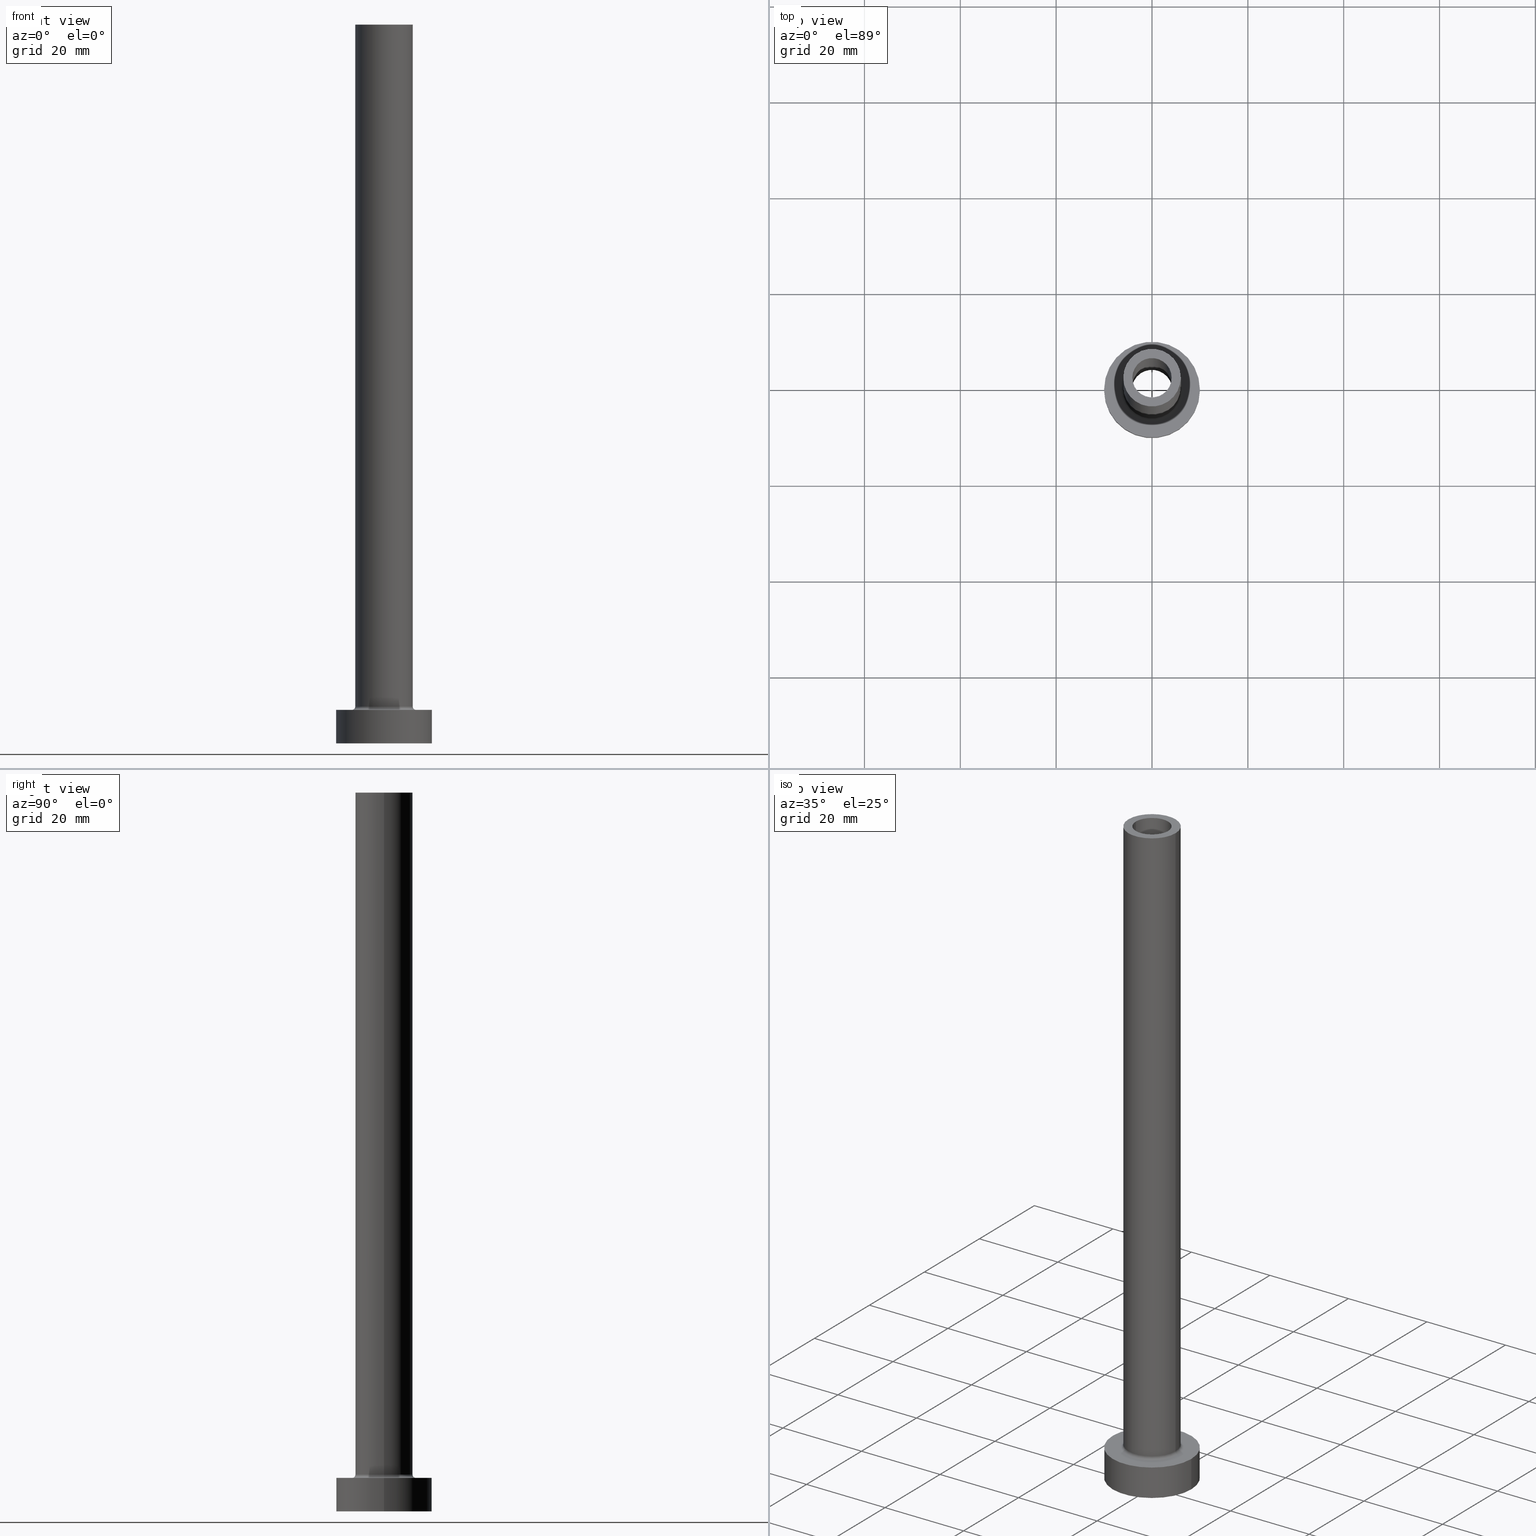
[diagram: canonical four-view strip — front | top / right | iso, engineering-drawing reading convention]
A machine part, canonical four-view strip (front | top / right | iso — engineering-drawing reading convention). The complete STEP part file that produces these views, byte-faithful:
ISO-10303-21;
HEADER;
FILE_DESCRIPTION (( 'STEP AP203' ),
    '1' );
FILE_NAME ('b5dd.STEP',
    '2023-02-13T07:46:06',
    ( '' ),
    ( '' ),
    'SwSTEP 2.0',
    'SolidWorks 2019',
    '' );
FILE_SCHEMA (( 'CONFIG_CONTROL_DESIGN' ));
ENDSEC;

DATA;
#1 = PRODUCT_RELATED_PRODUCT_CATEGORY ( 'detail', '', ( #72 ) ) ;
#2 = APPROVAL_PERSON_ORGANIZATION ( #327, #310, #439 ) ;
#3 = ORIENTED_EDGE ( 'NONE', *, *, #413, .F. ) ;
#4 = CC_DESIGN_APPROVAL ( #224, ( #297 ) ) ;
#5 = EDGE_LOOP ( 'NONE', ( #402, #255, #221, #79 ) ) ;
#6 = ORIENTED_EDGE ( 'NONE', *, *, #188, .F. ) ;
#7 = APPROVAL_ROLE ( '' ) ;
#8 = PRODUCT_DEFINITION_SHAPE ( 'NONE', 'NONE',  #331 ) ;
#9 = ORIENTED_EDGE ( 'NONE', *, *, #283, .F. ) ;
#10 = AXIS2_PLACEMENT_3D ( 'NONE', #308, #319, #200 ) ;
#11 = CALENDAR_DATE ( 2023, 13, 2 ) ;
#12 = DIRECTION ( 'NONE',  ( 0.000000000000000000, 0.000000000000000000, 1.000000000000000000 ) ) ;
#13 = EDGE_CURVE ( 'NONE', #259, #292, #190, .T. ) ;
#14 = ADVANCED_BREP_SHAPE_REPRESENTATION ( 'b5dd', ( #380, #57 ), #50 ) ;
#15 = ORIENTED_EDGE ( 'NONE', *, *, #315, .T. ) ;
#16 = MECHANICAL_CONTEXT ( 'NONE', #215, 'mechanical' ) ;
#17 = EDGE_CURVE ( 'NONE', #352, #278, #449, .T. ) ;
#18 = AXIS2_PLACEMENT_3D ( 'NONE', #406, #263, #370 ) ;
#19 = CARTESIAN_POINT ( 'NONE',  ( -4.099999999999999645, 0.000000000000000000, 150.0000000000000000 ) ) ;
#20 = PLANE ( 'NONE',  #438 ) ;
#21 = PERSON_AND_ORGANIZATION ( #91, #286 ) ;
#22 = CIRCLE ( 'NONE', #141, 6.000000000000000888 ) ;
#23 = CARTESIAN_POINT ( 'NONE',  ( 6.000000000000000888, 7.347880794884120722E-16, 150.0000000000000000 ) ) ;
#24 = ORIENTED_EDGE ( 'NONE', *, *, #413, .T. ) ;
#25 = VECTOR ( 'NONE', #160, 1000.000000000000000 ) ;
#26 = CARTESIAN_POINT ( 'NONE',  ( 0.000000000000000000, 0.000000000000000000, 0.000000000000000000 ) ) ;
#27 = ORIENTED_EDGE ( 'NONE', *, *, #337, .F. ) ;
#28 = DIRECTION ( 'NONE',  ( -0.000000000000000000, -0.000000000000000000, -1.000000000000000000 ) ) ;
#29 = ORIENTED_EDGE ( 'NONE', *, *, #447, .F. ) ;
#30 = CARTESIAN_POINT ( 'NONE',  ( 4.250000000000000000, 5.204748896376250699E-16, 0.000000000000000000 ) ) ;
#31 = AXIS2_PLACEMENT_3D ( 'NONE', #62, #109, #450 ) ;
#32 = DIRECTION ( 'NONE',  ( 1.000000000000000000, 0.000000000000000000, 0.000000000000000000 ) ) ;
#33 = CARTESIAN_POINT ( 'NONE',  ( 0.000000000000000000, 0.000000000000000000, 105.0000000000000000 ) ) ;
#34 = ADVANCED_FACE ( 'NONE', ( #63 ), #445, .F. ) ;
#35 = CARTESIAN_POINT ( 'NONE',  ( 0.000000000000000000, 0.000000000000000000, 150.0000000000000000 ) ) ;
#36 = VERTEX_POINT ( 'NONE', #339 ) ;
#37 = CIRCLE ( 'NONE', #53, 4.099999999999999645 ) ;
#38 = ORIENTED_EDGE ( 'NONE', *, *, #315, .F. ) ;
#39 = CALENDAR_DATE ( 2023, 13, 2 ) ;
#40 = CARTESIAN_POINT ( 'NONE',  ( 0.000000000000000000, 0.000000000000000000, 105.0000000000000000 ) ) ;
#41 = ORIENTED_EDGE ( 'NONE', *, *, #188, .T. ) ;
#42 = COORDINATED_UNIVERSAL_TIME_OFFSET ( 1, 0, .AHEAD. ) ;
#43 = CLOSED_SHELL ( 'NONE', ( #275, #235, #341, #116, #204, #353, #264, #298, #89, #212, #34, #171, #257, #163 ) ) ;
#44 = ORIENTED_EDGE ( 'NONE', *, *, #94, .T. ) ;
#45 = VERTEX_POINT ( 'NONE', #58 ) ;
#46 = EDGE_CURVE ( 'NONE', #292, #355, #403, .T. ) ;
#47 = COORDINATED_UNIVERSAL_TIME_OFFSET ( 1, 0, .AHEAD. ) ;
#48 = CIRCLE ( 'NONE', #367, 4.250000000000000000 ) ;
#49 = ORIENTED_EDGE ( 'NONE', *, *, #155, .F. ) ;
#50 =( GEOMETRIC_REPRESENTATION_CONTEXT ( 3 ) GLOBAL_UNCERTAINTY_ASSIGNED_CONTEXT ( ( #158 ) ) GLOBAL_UNIT_ASSIGNED_CONTEXT ( ( #71, #176, #302 ) ) REPRESENTATION_CONTEXT ( 'NONE', 'WORKASPACE' ) );
#51 = CARTESIAN_POINT ( 'NONE',  ( -6.000000000000000888, 0.000000000000000000, 7.700000000000012612 ) ) ;
#52 = EDGE_CURVE ( 'NONE', #36, #220, #61, .T. ) ;
#53 = AXIS2_PLACEMENT_3D ( 'NONE', #33, #313, #174 ) ;
#54 = EDGE_CURVE ( 'NONE', #293, #220, #314, .T. ) ;
#55 = DIRECTION ( 'NONE',  ( 1.000000000000000000, 0.000000000000000000, 0.000000000000000000 ) ) ;
#56 = CYLINDRICAL_SURFACE ( 'NONE', #311, 4.099999999999999645 ) ;
#57 = AXIS2_PLACEMENT_3D ( 'NONE', #180, #147, #213 ) ;
#58 = CARTESIAN_POINT ( 'NONE',  ( -10.00000000000000000, 0.000000000000000000, 7.000000000000000000 ) ) ;
#59 = DIRECTION ( 'NONE',  ( 1.224646799147353207E-16, 1.000000000000000000, -0.000000000000000000 ) ) ;
#60 = VERTEX_POINT ( 'NONE', #98 ) ;
#61 = CIRCLE ( 'NONE', #201, 10.00000000000000000 ) ;
#62 = CARTESIAN_POINT ( 'NONE',  ( 0.000000000000000000, 0.000000000000000000, 150.0000000000000000 ) ) ;
#63 = FACE_OUTER_BOUND ( 'NONE', #76, .T. ) ;
#64 = DIRECTION ( 'NONE',  ( 0.000000000000000000, 0.000000000000000000, 1.000000000000000000 ) ) ;
#65 = AXIS2_PLACEMENT_3D ( 'NONE', #156, #118, #301 ) ;
#66 = EDGE_CURVE ( 'NONE', #278, #240, #383, .T. ) ;
#67 = DIRECTION ( 'NONE',  ( 1.000000000000000000, 0.000000000000000000, 0.000000000000000000 ) ) ;
#68 = EDGE_LOOP ( 'NONE', ( #364, #175, #248, #455 ) ) ;
#69 = CARTESIAN_POINT ( 'NONE',  ( 0.000000000000000000, 0.000000000000000000, 7.700000000000012612 ) ) ;
#70 = ORIENTED_EDGE ( 'NONE', *, *, #191, .T. ) ;
#71 =( LENGTH_UNIT ( ) NAMED_UNIT ( * ) SI_UNIT ( .MILLI., .METRE. ) );
#72 = PRODUCT ( 'b5dd', 'b5dd', '', ( #16 ) ) ;
#73 = VERTEX_POINT ( 'NONE', #157 ) ;
#74 = PERSON_AND_ORGANIZATION_ROLE ( 'creator' ) ;
#75 = DIRECTION ( 'NONE',  ( 0.000000000000000000, 0.000000000000000000, 1.000000000000000000 ) ) ;
#76 = EDGE_LOOP ( 'NONE', ( #284, #77, #203, #289 ) ) ;
#77 = ORIENTED_EDGE ( 'NONE', *, *, #303, .F. ) ;
#78 = DIRECTION ( 'NONE',  ( 0.000000000000000000, 0.000000000000000000, 1.000000000000000000 ) ) ;
#79 = ORIENTED_EDGE ( 'NONE', *, *, #13, .F. ) ;
#80 = DATE_AND_TIME ( #11, #379 ) ;
#81 = LINE ( 'NONE', #167, #376 ) ;
#82 = AXIS2_PLACEMENT_3D ( 'NONE', #26, #105, #244 ) ;
#83 = ORIENTED_EDGE ( 'NONE', *, *, #377, .T. ) ;
#84 = CC_DESIGN_SECURITY_CLASSIFICATION ( #297, ( #177 ) ) ;
#85 = APPROVAL ( #250, 'NEUR�EN�' ) ;
#86 = COORDINATED_UNIVERSAL_TIME_OFFSET ( 1, 0, .AHEAD. ) ;
#87 = LINE ( 'NONE', #19, #25 ) ;
#88 = CC_DESIGN_APPROVAL ( #85, ( #177 ) ) ;
#89 = ADVANCED_FACE ( 'NONE', ( #375 ), #189, .T. ) ;
#90 = DATE_AND_TIME ( #444, #127 ) ;
#91 = PERSON ( 'NEUR�EN�', 'NEUR�EN�', 'NEUR�EN�', ('NEUR�EN�'), ('NEUR�EN�'), ('NEUR�EN�') ) ;
#92 = CARTESIAN_POINT ( 'NONE',  ( 0.000000000000000000, 0.000000000000000000, 7.700000000000012612 ) ) ;
#93 = CARTESIAN_POINT ( 'NONE',  ( 0.000000000000000000, 0.000000000000000000, 117.0208152801713197 ) ) ;
#94 = EDGE_CURVE ( 'NONE', #334, #60, #87, .T. ) ;
#95 = CIRCLE ( 'NONE', #162, 6.000000000000000888 ) ;
#96 = DIRECTION ( 'NONE',  ( 0.000000000000000000, 0.000000000000000000, 1.000000000000000000 ) ) ;
#97 = EDGE_LOOP ( 'NONE', ( #114, #296 ) ) ;
#98 = CARTESIAN_POINT ( 'NONE',  ( -4.099999999999999645, 0.000000000000000000, 105.0000000000000000 ) ) ;
#99 = DIRECTION ( 'NONE',  ( 1.000000000000000000, 0.000000000000000000, 0.000000000000000000 ) ) ;
#100 = DIRECTION ( 'NONE',  ( 1.000000000000000000, 0.000000000000000000, 0.000000000000000000 ) ) ;
#101 = DIRECTION ( 'NONE',  ( 1.000000000000000000, 0.000000000000000000, 0.000000000000000000 ) ) ;
#102 = DIRECTION ( 'NONE',  ( 0.000000000000000000, 0.000000000000000000, 1.000000000000000000 ) ) ;
#103 = CYLINDRICAL_SURFACE ( 'NONE', #10, 4.099999999999999645 ) ;
#104 = CARTESIAN_POINT ( 'NONE',  ( -6.000000000000000888, 0.000000000000000000, 150.0000000000000000 ) ) ;
#105 = DIRECTION ( 'NONE',  ( -0.000000000000000000, -0.000000000000000000, -1.000000000000000000 ) ) ;
#106 = AXIS2_PLACEMENT_3D ( 'NONE', #35, #461, #140 ) ;
#107 = ORIENTED_EDGE ( 'NONE', *, *, #94, .F. ) ;
#108 = EDGE_CURVE ( 'NONE', #426, #359, #305, .T. ) ;
#109 = DIRECTION ( 'NONE',  ( 0.000000000000000000, 0.000000000000000000, 1.000000000000000000 ) ) ;
#110 = ORIENTED_EDGE ( 'NONE', *, *, #432, .T. ) ;
#111 = ORIENTED_EDGE ( 'NONE', *, *, #374, .T. ) ;
#112 = DATE_TIME_ROLE ( 'creation_date' ) ;
#113 = FACE_OUTER_BOUND ( 'NONE', #316, .T. ) ;
#114 = ORIENTED_EDGE ( 'NONE', *, *, #432, .F. ) ;
#115 = PERSON_AND_ORGANIZATION_ROLE ( 'classification_officer' ) ;
#116 = ADVANCED_FACE ( 'NONE', ( #231 ), #232, .T. ) ;
#117 = ORIENTED_EDGE ( 'NONE', *, *, #388, .F. ) ;
#118 = DIRECTION ( 'NONE',  ( -0.000000000000000000, -0.000000000000000000, -1.000000000000000000 ) ) ;
#119 = LOCAL_TIME ( 8, 46, 6.000000000000000000, #440 ) ;
#120 = CC_DESIGN_PERSON_AND_ORGANIZATION_ASSIGNMENT ( #152, #401, ( #177 ) ) ;
#121 = CARTESIAN_POINT ( 'NONE',  ( 4.250000000000000000, 5.204748896376250699E-16, 117.0208152801713197 ) ) ;
#122 = CIRCLE ( 'NONE', #268, 4.250000000000000000 ) ;
#123 = CARTESIAN_POINT ( 'NONE',  ( 0.000000000000000000, 0.000000000000000000, 7.000000000000000000 ) ) ;
#124 = EDGE_LOOP ( 'NONE', ( #142, #138 ) ) ;
#125 = EDGE_CURVE ( 'NONE', #322, #179, #81, .T. ) ;
#126 = DIRECTION ( 'NONE',  ( 0.000000000000000000, 0.000000000000000000, 1.000000000000000000 ) ) ;
#127 = LOCAL_TIME ( 8, 46, 6.000000000000000000, #408 ) ;
#128 = DIRECTION ( 'NONE',  ( 0.000000000000000000, 0.000000000000000000, -1.000000000000000000 ) ) ;
#129 = CIRCLE ( 'NONE', #82, 4.250000000000000000 ) ;
#130 = FACE_OUTER_BOUND ( 'NONE', #330, .T. ) ;
#131 = DIRECTION ( 'NONE',  ( 0.000000000000000000, 0.000000000000000000, 1.000000000000000000 ) ) ;
#132 = APPLICATION_CONTEXT ( 'configuration controlled 3d designs of mechanical parts and assemblies' ) ;
#133 = CARTESIAN_POINT ( 'NONE',  ( 0.000000000000000000, 0.000000000000000000, 7.000000000000000000 ) ) ;
#134 = ORIENTED_EDGE ( 'NONE', *, *, #410, .T. ) ;
#135 = AXIS2_PLACEMENT_3D ( 'NONE', #309, #405, #446 ) ;
#136 = CARTESIAN_POINT ( 'NONE',  ( -4.250000000000000000, 0.000000000000000000, 105.0000000000000000 ) ) ;
#137 = FACE_BOUND ( 'NONE', #97, .T. ) ;
#138 = ORIENTED_EDGE ( 'NONE', *, *, #366, .F. ) ;
#139 = CARTESIAN_POINT ( 'NONE',  ( 0.000000000000000000, 0.000000000000000000, 7.700000000000012612 ) ) ;
#140 = DIRECTION ( 'NONE',  ( 1.000000000000000000, 0.000000000000000000, -0.000000000000000000 ) ) ;
#141 = AXIS2_PLACEMENT_3D ( 'NONE', #69, #390, #32 ) ;
#142 = ORIENTED_EDGE ( 'NONE', *, *, #196, .F. ) ;
#143 = DATE_AND_TIME ( #291, #338 ) ;
#144 = FACE_BOUND ( 'NONE', #295, .T. ) ;
#145 = ORIENTED_EDGE ( 'NONE', *, *, #52, .F. ) ;
#146 = EDGE_LOOP ( 'NONE', ( #9, #184, #44, #3 ) ) ;
#147 = DIRECTION ( 'NONE',  ( 0.000000000000000000, 0.000000000000000000, 1.000000000000000000 ) ) ;
#148 = DIRECTION ( 'NONE',  ( 1.000000000000000000, 0.000000000000000000, 0.000000000000000000 ) ) ;
#149 = EDGE_LOOP ( 'NONE', ( #41, #362 ) ) ;
#150 = ORIENTED_EDGE ( 'NONE', *, *, #283, .T. ) ;
#151 = DIRECTION ( 'NONE',  ( -1.000000000000000000, 0.000000000000000000, 0.000000000000000000 ) ) ;
#152 = PERSON_AND_ORGANIZATION ( #91, #286 ) ;
#153 = CIRCLE ( 'NONE', #192, 10.00000000000000000 ) ;
#154 = ORIENTED_EDGE ( 'NONE', *, *, #457, .T. ) ;
#155 = EDGE_CURVE ( 'NONE', #322, #426, #48, .T. ) ;
#156 = CARTESIAN_POINT ( 'NONE',  ( 0.000000000000000000, 0.000000000000000000, 7.000000000000000000 ) ) ;
#157 = CARTESIAN_POINT ( 'NONE',  ( 4.099999999999999645, 5.021051876504146399E-16, 150.0000000000000000 ) ) ;
#158 = UNCERTAINTY_MEASURE_WITH_UNIT (LENGTH_MEASURE( 1.000000000000000082E-05 ), #71, 'distance_accuracy_value', 'NONE');
#159 = AXIS2_PLACEMENT_3D ( 'NONE', #243, #126, #288 ) ;
#160 = DIRECTION ( 'NONE',  ( 0.000000000000000000, 0.000000000000000000, -1.000000000000000000 ) ) ;
#161 = CARTESIAN_POINT ( 'NONE',  ( 6.000000000000000888, 7.347880794884120722E-16, 7.700000000000012612 ) ) ;
#162 = AXIS2_PLACEMENT_3D ( 'NONE', #216, #219, #148 ) ;
#163 = ADVANCED_FACE ( 'NONE', ( #345 ), #56, .F. ) ;
#164 = CARTESIAN_POINT ( 'NONE',  ( -6.700000000000001066, 8.205133554287267548E-16, 7.000000000000006217 ) ) ;
#165 = CARTESIAN_POINT ( 'NONE',  ( 0.000000000000000000, 0.000000000000000000, 105.0000000000000000 ) ) ;
#166 = DIRECTION ( 'NONE',  ( 0.000000000000000000, 0.000000000000000000, 1.000000000000000000 ) ) ;
#167 = CARTESIAN_POINT ( 'NONE',  ( -4.250000000000000000, 0.000000000000000000, 117.0208152801713197 ) ) ;
#168 = DIRECTION ( 'NONE',  ( -0.000000000000000000, -0.000000000000000000, -1.000000000000000000 ) ) ;
#169 = CARTESIAN_POINT ( 'NONE',  ( 6.000000000000000888, 7.347880794884120722E-16, 150.0000000000000000 ) ) ;
#170 = CYLINDRICAL_SURFACE ( 'NONE', #389, 4.250000000000000000 ) ;
#171 = ADVANCED_FACE ( 'NONE', ( #415 ), #170, .F. ) ;
#172 = DIRECTION ( 'NONE',  ( 0.000000000000000000, 0.000000000000000000, 1.000000000000000000 ) ) ;
#173 = AXIS2_PLACEMENT_3D ( 'NONE', #373, #193, #267 ) ;
#174 = DIRECTION ( 'NONE',  ( 1.000000000000000000, 0.000000000000000000, 0.000000000000000000 ) ) ;
#175 = ORIENTED_EDGE ( 'NONE', *, *, #447, .T. ) ;
#176 =( NAMED_UNIT ( * ) PLANE_ANGLE_UNIT ( ) SI_UNIT ( $, .RADIAN. ) );
#177 = PRODUCT_DEFINITION_FORMATION_WITH_SPECIFIED_SOURCE ( 'LIBOVOLN�', '', #72, .NOT_KNOWN. ) ;
#178 = EDGE_CURVE ( 'NONE', #73, #334, #318, .T. ) ;
#179 = VERTEX_POINT ( 'NONE', #183 ) ;
#180 = CARTESIAN_POINT ( 'NONE',  ( 0.000000000000000000, 0.000000000000000000, 0.000000000000000000 ) ) ;
#181 = EDGE_LOOP ( 'NONE', ( #253, #27, #134, #356 ) ) ;
#182 = PERSON_AND_ORGANIZATION ( #91, #286 ) ;
#183 = CARTESIAN_POINT ( 'NONE',  ( -4.250000000000000000, 0.000000000000000000, 0.000000000000000000 ) ) ;
#184 = ORIENTED_EDGE ( 'NONE', *, *, #178, .T. ) ;
#185 = APPROVAL_STATUS ( 'not_yet_approved' ) ;
#186 = AXIS2_PLACEMENT_3D ( 'NONE', #165, #270, #411 ) ;
#187 = DIRECTION ( 'NONE',  ( 1.000000000000000000, 0.000000000000000000, 0.000000000000000000 ) ) ;
#188 = EDGE_CURVE ( 'NONE', #278, #352, #95, .T. ) ;
#189 = CYLINDRICAL_SURFACE ( 'NONE', #135, 6.000000000000000888 ) ;
#190 = CIRCLE ( 'NONE', #409, 0.7000000000000000666 ) ;
#191 = EDGE_CURVE ( 'NONE', #60, #460, #398, .T. ) ;
#192 = AXIS2_PLACEMENT_3D ( 'NONE', #324, #64, #351 ) ;
#193 = DIRECTION ( 'NONE',  ( -0.000000000000000000, -0.000000000000000000, -1.000000000000000000 ) ) ;
#194 = CARTESIAN_POINT ( 'NONE',  ( 0.000000000000000000, 0.000000000000000000, 150.0000000000000000 ) ) ;
#195 = VECTOR ( 'NONE', #229, 1000.000000000000000 ) ;
#196 = EDGE_CURVE ( 'NONE', #179, #359, #427, .T. ) ;
#197 = CARTESIAN_POINT ( 'NONE',  ( 0.000000000000000000, 0.000000000000000000, 0.000000000000000000 ) ) ;
#198 = CIRCLE ( 'NONE', #65, 6.700000000000001066 ) ;
#199 = DIRECTION ( 'NONE',  ( 1.000000000000000000, 0.000000000000000000, 0.000000000000000000 ) ) ;
#200 = DIRECTION ( 'NONE',  ( -1.000000000000000000, 0.000000000000000000, 0.000000000000000000 ) ) ;
#201 = AXIS2_PLACEMENT_3D ( 'NONE', #197, #312, #199 ) ;
#202 = DIRECTION ( 'NONE',  ( 0.000000000000000000, 0.000000000000000000, -1.000000000000000000 ) ) ;
#203 = ORIENTED_EDGE ( 'NONE', *, *, #13, .T. ) ;
#204 = ADVANCED_FACE ( 'NONE', ( #113 ), #396, .T. ) ;
#205 = DIRECTION ( 'NONE',  ( 0.000000000000000000, 0.000000000000000000, -1.000000000000000000 ) ) ;
#206 = AXIS2_PLACEMENT_3D ( 'NONE', #241, #59, #384 ) ;
#207 = DIRECTION ( 'NONE',  ( 0.000000000000000000, 0.000000000000000000, 1.000000000000000000 ) ) ;
#208 = DIRECTION ( 'NONE',  ( -0.000000000000000000, -0.000000000000000000, -1.000000000000000000 ) ) ;
#209 = DIRECTION ( 'NONE',  ( -0.000000000000000000, -0.000000000000000000, -1.000000000000000000 ) ) ;
#210 = ORIENTED_EDGE ( 'NONE', *, *, #66, .F. ) ;
#211 = DIRECTION ( 'NONE',  ( 1.000000000000000000, 0.000000000000000000, 0.000000000000000000 ) ) ;
#212 = ADVANCED_FACE ( 'NONE', ( #137, #429 ), #425, .T. ) ;
#213 = DIRECTION ( 'NONE',  ( 1.000000000000000000, 0.000000000000000000, 0.000000000000000000 ) ) ;
#214 = CIRCLE ( 'NONE', #357, 6.000000000000000888 ) ;
#215 = APPLICATION_CONTEXT ( 'configuration controlled 3d designs of mechanical parts and assemblies' ) ;
#216 = CARTESIAN_POINT ( 'NONE',  ( 0.000000000000000000, 0.000000000000000000, 150.0000000000000000 ) ) ;
#217 = ORIENTED_EDGE ( 'NONE', *, *, #54, .T. ) ;
#218 = DATE_AND_TIME ( #39, #274 ) ;
#219 = DIRECTION ( 'NONE',  ( 0.000000000000000000, 0.000000000000000000, 1.000000000000000000 ) ) ;
#220 = VERTEX_POINT ( 'NONE', #245 ) ;
#221 = ORIENTED_EDGE ( 'NONE', *, *, #46, .F. ) ;
#222 = PERSON_AND_ORGANIZATION ( #91, #286 ) ;
#223 = ORIENTED_EDGE ( 'NONE', *, *, #125, .F. ) ;
#224 = APPROVAL ( #265, 'NEUR�EN�' ) ;
#225 = PERSON_AND_ORGANIZATION ( #91, #286 ) ;
#226 = CIRCLE ( 'NONE', #206, 0.7000000000000000666 ) ;
#227 = VECTOR ( 'NONE', #168, 1000.000000000000000 ) ;
#228 = EDGE_LOOP ( 'NONE', ( #70, #24 ) ) ;
#229 = DIRECTION ( 'NONE',  ( 0.000000000000000000, 0.000000000000000000, -1.000000000000000000 ) ) ;
#230 = CC_DESIGN_PERSON_AND_ORGANIZATION_ASSIGNMENT ( #225, #115, ( #297 ) ) ;
#231 = FACE_OUTER_BOUND ( 'NONE', #397, .T. ) ;
#232 = CYLINDRICAL_SURFACE ( 'NONE', #173, 6.000000000000000888 ) ;
#233 = VECTOR ( 'NONE', #202, 1000.000000000000000 ) ;
#234 = SHAPE_DEFINITION_REPRESENTATION ( #8, #14 ) ;
#235 = ADVANCED_FACE ( 'NONE', ( #391 ), #347, .F. ) ;
#236 = DIRECTION ( 'NONE',  ( -0.000000000000000000, -0.000000000000000000, -1.000000000000000000 ) ) ;
#237 = DIRECTION ( 'NONE',  ( 1.000000000000000000, 0.000000000000000000, 0.000000000000000000 ) ) ;
#238 = DIRECTION ( 'NONE',  ( -1.000000000000000000, 0.000000000000000000, 0.000000000000000000 ) ) ;
#239 = CYLINDRICAL_SURFACE ( 'NONE', #378, 10.00000000000000000 ) ;
#240 = VERTEX_POINT ( 'NONE', #51 ) ;
#241 = CARTESIAN_POINT ( 'NONE',  ( -6.700000000000001066, 8.205133554287267548E-16, 7.700000000000012612 ) ) ;
#242 = CC_DESIGN_PERSON_AND_ORGANIZATION_ASSIGNMENT ( #182, #333, ( #177 ) ) ;
#243 = CARTESIAN_POINT ( 'NONE',  ( 0.000000000000000000, 0.000000000000000000, 0.000000000000000000 ) ) ;
#244 = DIRECTION ( 'NONE',  ( 1.000000000000000000, 0.000000000000000000, 0.000000000000000000 ) ) ;
#245 = CARTESIAN_POINT ( 'NONE',  ( 10.00000000000000000, 1.224646799147353256E-15, 0.000000000000000000 ) ) ;
#246 = CC_DESIGN_DATE_AND_TIME_ASSIGNMENT ( #404, #112, ( #331 ) ) ;
#247 = CARTESIAN_POINT ( 'NONE',  ( 0.000000000000000000, 0.000000000000000000, 7.700000000000012612 ) ) ;
#248 = ORIENTED_EDGE ( 'NONE', *, *, #125, .T. ) ;
#249 = AXIS2_PLACEMENT_3D ( 'NONE', #123, #236, #55 ) ;
#250 = APPROVAL_STATUS ( 'not_yet_approved' ) ;
#251 = DIRECTION ( 'NONE',  ( 1.000000000000000000, 0.000000000000000000, 0.000000000000000000 ) ) ;
#252 = ORIENTED_EDGE ( 'NONE', *, *, #366, .T. ) ;
#253 = ORIENTED_EDGE ( 'NONE', *, *, #54, .F. ) ;
#254 = PERSON_AND_ORGANIZATION ( #91, #286 ) ;
#255 = ORIENTED_EDGE ( 'NONE', *, *, #423, .T. ) ;
#256 = CALENDAR_DATE ( 2023, 13, 2 ) ;
#257 = ADVANCED_FACE ( 'NONE', ( #451, #385 ), #340, .F. ) ;
#258 = ORIENTED_EDGE ( 'NONE', *, *, #337, .T. ) ;
#259 = VERTEX_POINT ( 'NONE', #161 ) ;
#260 = EDGE_LOOP ( 'NONE', ( #258, #111 ) ) ;
#261 = PERSON_AND_ORGANIZATION_ROLE ( 'design_owner' ) ;
#262 = AXIS2_PLACEMENT_3D ( 'NONE', #194, #306, #100 ) ;
#263 = DIRECTION ( 'NONE',  ( -0.000000000000000000, -0.000000000000000000, -1.000000000000000000 ) ) ;
#264 = ADVANCED_FACE ( 'NONE', ( #144, #434 ), #20, .T. ) ;
#265 = APPROVAL_STATUS ( 'not_yet_approved' ) ;
#266 = CARTESIAN_POINT ( 'NONE',  ( 0.000000000000000000, 0.000000000000000000, 7.000000000000000000 ) ) ;
#267 = DIRECTION ( 'NONE',  ( -1.000000000000000000, 0.000000000000000000, 0.000000000000000000 ) ) ;
#268 = AXIS2_PLACEMENT_3D ( 'NONE', #317, #78, #187 ) ;
#269 = DIRECTION ( 'NONE',  ( 0.000000000000000000, 0.000000000000000000, 1.000000000000000000 ) ) ;
#270 = DIRECTION ( 'NONE',  ( 0.000000000000000000, 0.000000000000000000, 1.000000000000000000 ) ) ;
#271 = DIRECTION ( 'NONE',  ( 0.000000000000000000, 0.000000000000000000, -1.000000000000000000 ) ) ;
#272 = DIRECTION ( 'NONE',  ( 1.000000000000000000, 0.000000000000000000, -0.000000000000000000 ) ) ;
#273 = AXIS2_PLACEMENT_3D ( 'NONE', #139, #207, #321 ) ;
#274 = LOCAL_TIME ( 8, 46, 6.000000000000000000, #42 ) ;
#275 = ADVANCED_FACE ( 'NONE', ( #329 ), #103, .F. ) ;
#276 = FACE_BOUND ( 'NONE', #124, .T. ) ;
#277 = ORIENTED_EDGE ( 'NONE', *, *, #303, .T. ) ;
#278 = VERTEX_POINT ( 'NONE', #104 ) ;
#279 = CARTESIAN_POINT ( 'NONE',  ( 0.000000000000000000, 0.000000000000000000, 105.0000000000000000 ) ) ;
#280 = DIRECTION ( 'NONE',  ( -0.000000000000000000, -0.000000000000000000, -1.000000000000000000 ) ) ;
#281 = AXIS2_PLACEMENT_3D ( 'NONE', #92, #166, #237 ) ;
#282 = CARTESIAN_POINT ( 'NONE',  ( 10.00000000000000000, 1.224646799147353256E-15, 7.000000000000000000 ) ) ;
#283 = EDGE_CURVE ( 'NONE', #73, #460, #346, .T. ) ;
#284 = ORIENTED_EDGE ( 'NONE', *, *, #423, .F. ) ;
#285 = EDGE_LOOP ( 'NONE', ( #437, #360, #252, #223 ) ) ;
#286 = ORGANIZATION ( 'NEUR�EN�', 'NEUR�EN�', '' ) ;
#287 = APPROVAL_PERSON_ORGANIZATION ( #21, #224, #371 ) ;
#288 = DIRECTION ( 'NONE',  ( 1.000000000000000000, 0.000000000000000000, -0.000000000000000000 ) ) ;
#289 = ORIENTED_EDGE ( 'NONE', *, *, #457, .F. ) ;
#290 = EDGE_LOOP ( 'NONE', ( #49, #29 ) ) ;
#291 = CALENDAR_DATE ( 2023, 13, 2 ) ;
#292 = VERTEX_POINT ( 'NONE', #459 ) ;
#293 = VERTEX_POINT ( 'NONE', #282 ) ;
#294 = APPLICATION_PROTOCOL_DEFINITION ( 'international standard', 'config_control_design', 1994, #215 ) ;
#295 = EDGE_LOOP ( 'NONE', ( #392, #154 ) ) ;
#296 = ORIENTED_EDGE ( 'NONE', *, *, #178, .F. ) ;
#297 = SECURITY_CLASSIFICATION ( '', '', #363 ) ;
#298 = ADVANCED_FACE ( 'NONE', ( #276, #130 ), #421, .F. ) ;
#299 = TOROIDAL_SURFACE ( 'NONE', #273, 6.700000000000001066, 0.6999999999999999556 ) ;
#300 = ORIENTED_EDGE ( 'NONE', *, *, #66, .T. ) ;
#301 = DIRECTION ( 'NONE',  ( 1.000000000000000000, 0.000000000000000000, 0.000000000000000000 ) ) ;
#302 =( NAMED_UNIT ( * ) SI_UNIT ( $, .STERADIAN. ) SOLID_ANGLE_UNIT ( ) );
#303 = EDGE_CURVE ( 'NONE', #259, #240, #214, .T. ) ;
#304 = APPROVAL_PERSON_ORGANIZATION ( #358, #85, #7 ) ;
#305 = LINE ( 'NONE', #121, #195 ) ;
#306 = DIRECTION ( 'NONE',  ( 0.000000000000000000, 0.000000000000000000, 1.000000000000000000 ) ) ;
#307 = APPROVAL_DATE_TIME ( #90, #224 ) ;
#308 = CARTESIAN_POINT ( 'NONE',  ( 0.000000000000000000, 0.000000000000000000, 150.0000000000000000 ) ) ;
#309 = CARTESIAN_POINT ( 'NONE',  ( 0.000000000000000000, 0.000000000000000000, 150.0000000000000000 ) ) ;
#310 = APPROVAL ( #185, 'NEUR�EN�' ) ;
#311 = AXIS2_PLACEMENT_3D ( 'NONE', #386, #205, #350 ) ;
#312 = DIRECTION ( 'NONE',  ( 0.000000000000000000, 0.000000000000000000, 1.000000000000000000 ) ) ;
#313 = DIRECTION ( 'NONE',  ( 0.000000000000000000, 0.000000000000000000, 1.000000000000000000 ) ) ;
#314 = LINE ( 'NONE', #452, #435 ) ;
#315 = EDGE_CURVE ( 'NONE', #352, #259, #458, .T. ) ;
#316 = EDGE_LOOP ( 'NONE', ( #325, #217, #382, #431 ) ) ;
#317 = CARTESIAN_POINT ( 'NONE',  ( 0.000000000000000000, 0.000000000000000000, 105.0000000000000000 ) ) ;
#318 = CIRCLE ( 'NONE', #262, 4.099999999999999645 ) ;
#319 = DIRECTION ( 'NONE',  ( 0.000000000000000000, 0.000000000000000000, -1.000000000000000000 ) ) ;
#320 = DIRECTION ( 'NONE',  ( 0.000000000000000000, 0.000000000000000000, -1.000000000000000000 ) ) ;
#321 = DIRECTION ( 'NONE',  ( 1.000000000000000000, 0.000000000000000000, 0.000000000000000000 ) ) ;
#322 = VERTEX_POINT ( 'NONE', #136 ) ;
#323 = AXIS2_PLACEMENT_3D ( 'NONE', #448, #131, #101 ) ;
#324 = CARTESIAN_POINT ( 'NONE',  ( 0.000000000000000000, 0.000000000000000000, 7.000000000000000000 ) ) ;
#325 = ORIENTED_EDGE ( 'NONE', *, *, #374, .F. ) ;
#326 = CC_DESIGN_APPROVAL ( #310, ( #331 ) ) ;
#327 = PERSON_AND_ORGANIZATION ( #91, #286 ) ;
#328 = ORIENTED_EDGE ( 'NONE', *, *, #191, .F. ) ;
#329 = FACE_OUTER_BOUND ( 'NONE', #365, .T. ) ;
#330 = EDGE_LOOP ( 'NONE', ( #145, #117 ) ) ;
#331 = PRODUCT_DEFINITION ( 'NEZN�M�', '', #177, #442 ) ;
#332 = CARTESIAN_POINT ( 'NONE',  ( 0.000000000000000000, 0.000000000000000000, 117.0208152801713197 ) ) ;
#333 = PERSON_AND_ORGANIZATION_ROLE ( 'creator' ) ;
#334 = VERTEX_POINT ( 'NONE', #424 ) ;
#335 = CC_DESIGN_PERSON_AND_ORGANIZATION_ASSIGNMENT ( #254, #261, ( #72 ) ) ;
#336 = AXIS2_PLACEMENT_3D ( 'NONE', #40, #75, #251 ) ;
#337 = EDGE_CURVE ( 'NONE', #45, #293, #369, .T. ) ;
#338 = LOCAL_TIME ( 8, 46, 6.000000000000000000, #86 ) ;
#339 = CARTESIAN_POINT ( 'NONE',  ( -10.00000000000000000, 0.000000000000000000, 0.000000000000000000 ) ) ;
#340 = PLANE ( 'NONE',  #186 ) ;
#341 = ADVANCED_FACE ( 'NONE', ( #420 ), #299, .F. ) ;
#342 = CARTESIAN_POINT ( 'NONE',  ( 4.250000000000000000, 5.204748896376250699E-16, 105.0000000000000000 ) ) ;
#343 = VECTOR ( 'NONE', #28, 1000.000000000000000 ) ;
#344 = CARTESIAN_POINT ( 'NONE',  ( -6.000000000000000888, 0.000000000000000000, 150.0000000000000000 ) ) ;
#345 = FACE_OUTER_BOUND ( 'NONE', #146, .T. ) ;
#346 = LINE ( 'NONE', #387, #233 ) ;
#347 = CYLINDRICAL_SURFACE ( 'NONE', #417, 4.250000000000000000 ) ;
#348 = CARTESIAN_POINT ( 'NONE',  ( 6.700000000000001066, 0.000000000000000000, 7.700000000000012612 ) ) ;
#349 = AXIS2_PLACEMENT_3D ( 'NONE', #416, #96, #211 ) ;
#350 = DIRECTION ( 'NONE',  ( -1.000000000000000000, 0.000000000000000000, 0.000000000000000000 ) ) ;
#351 = DIRECTION ( 'NONE',  ( 1.000000000000000000, 0.000000000000000000, 0.000000000000000000 ) ) ;
#352 = VERTEX_POINT ( 'NONE', #23 ) ;
#353 = ADVANCED_FACE ( 'NONE', ( #354 ), #239, .T. ) ;
#354 = FACE_OUTER_BOUND ( 'NONE', #181, .T. ) ;
#355 = VERTEX_POINT ( 'NONE', #164 ) ;
#356 = ORIENTED_EDGE ( 'NONE', *, *, #52, .T. ) ;
#357 = AXIS2_PLACEMENT_3D ( 'NONE', #247, #269, #99 ) ;
#358 = PERSON_AND_ORGANIZATION ( #91, #286 ) ;
#359 = VERTEX_POINT ( 'NONE', #30 ) ;
#360 = ORIENTED_EDGE ( 'NONE', *, *, #108, .T. ) ;
#361 = APPROVAL_DATE_TIME ( #218, #85 ) ;
#362 = ORIENTED_EDGE ( 'NONE', *, *, #17, .T. ) ;
#363 = SECURITY_CLASSIFICATION_LEVEL ( 'unclassified' ) ;
#364 = ORIENTED_EDGE ( 'NONE', *, *, #108, .F. ) ;
#365 = EDGE_LOOP ( 'NONE', ( #110, #150, #328, #107 ) ) ;
#366 = EDGE_CURVE ( 'NONE', #359, #179, #129, .T. ) ;
#367 = AXIS2_PLACEMENT_3D ( 'NONE', #279, #102, #419 ) ;
#368 = DATE_TIME_ROLE ( 'classification_date' ) ;
#369 = CIRCLE ( 'NONE', #349, 10.00000000000000000 ) ;
#370 = DIRECTION ( 'NONE',  ( 1.000000000000000000, 0.000000000000000000, 0.000000000000000000 ) ) ;
#371 = APPROVAL_ROLE ( '' ) ;
#372 = CIRCLE ( 'NONE', #31, 4.099999999999999645 ) ;
#373 = CARTESIAN_POINT ( 'NONE',  ( 0.000000000000000000, 0.000000000000000000, 150.0000000000000000 ) ) ;
#374 = EDGE_CURVE ( 'NONE', #293, #45, #153, .T. ) ;
#375 = FACE_OUTER_BOUND ( 'NONE', #400, .T. ) ;
#376 = VECTOR ( 'NONE', #128, 1000.000000000000000 ) ;
#377 = EDGE_CURVE ( 'NONE', #240, #259, #22, .T. ) ;
#378 = AXIS2_PLACEMENT_3D ( 'NONE', #133, #280, #393 ) ;
#379 = LOCAL_TIME ( 8, 46, 6.000000000000000000, #47 ) ;
#380 = MANIFOLD_SOLID_BREP ( 'Odebrat vysunut�m4', #43 ) ;
#381 = LINE ( 'NONE', #453, #407 ) ;
#382 = ORIENTED_EDGE ( 'NONE', *, *, #388, .T. ) ;
#383 = LINE ( 'NONE', #344, #343 ) ;
#384 = DIRECTION ( 'NONE',  ( -1.000000000000000000, 1.224646799147353454E-16, 0.000000000000000000 ) ) ;
#385 = FACE_OUTER_BOUND ( 'NONE', #290, .T. ) ;
#386 = CARTESIAN_POINT ( 'NONE',  ( 0.000000000000000000, 0.000000000000000000, 150.0000000000000000 ) ) ;
#387 = CARTESIAN_POINT ( 'NONE',  ( 4.099999999999999645, 5.021051876504146399E-16, 150.0000000000000000 ) ) ;
#388 = EDGE_CURVE ( 'NONE', #220, #36, #412, .T. ) ;
#389 = AXIS2_PLACEMENT_3D ( 'NONE', #93, #320, #238 ) ;
#390 = DIRECTION ( 'NONE',  ( 0.000000000000000000, 0.000000000000000000, 1.000000000000000000 ) ) ;
#391 = FACE_OUTER_BOUND ( 'NONE', #285, .T. ) ;
#392 = ORIENTED_EDGE ( 'NONE', *, *, #46, .T. ) ;
#393 = DIRECTION ( 'NONE',  ( -1.000000000000000000, 0.000000000000000000, 0.000000000000000000 ) ) ;
#394 = CARTESIAN_POINT ( 'NONE',  ( 0.000000000000000000, 0.000000000000000000, 7.000000000000000000 ) ) ;
#395 = CC_DESIGN_PERSON_AND_ORGANIZATION_ASSIGNMENT ( #222, #74, ( #331 ) ) ;
#396 = CYLINDRICAL_SURFACE ( 'NONE', #441, 10.00000000000000000 ) ;
#397 = EDGE_LOOP ( 'NONE', ( #430, #15, #277, #210 ) ) ;
#398 = CIRCLE ( 'NONE', #336, 4.099999999999999645 ) ;
#399 = APPLICATION_PROTOCOL_DEFINITION ( 'international standard', 'config_control_design', 1994, #132 ) ;
#400 = EDGE_LOOP ( 'NONE', ( #38, #6, #300, #83 ) ) ;
#401 = PERSON_AND_ORGANIZATION_ROLE ( 'design_supplier' ) ;
#402 = ORIENTED_EDGE ( 'NONE', *, *, #377, .F. ) ;
#403 = CIRCLE ( 'NONE', #249, 6.700000000000001066 ) ;
#404 = DATE_AND_TIME ( #256, #119 ) ;
#405 = DIRECTION ( 'NONE',  ( -0.000000000000000000, -0.000000000000000000, -1.000000000000000000 ) ) ;
#406 = CARTESIAN_POINT ( 'NONE',  ( 0.000000000000000000, 0.000000000000000000, 0.000000000000000000 ) ) ;
#407 = VECTOR ( 'NONE', #209, 1000.000000000000000 ) ;
#408 = COORDINATED_UNIVERSAL_TIME_OFFSET ( 1, 0, .AHEAD. ) ;
#409 = AXIS2_PLACEMENT_3D ( 'NONE', #348, #456, #414 ) ;
#410 = EDGE_CURVE ( 'NONE', #45, #36, #381, .T. ) ;
#411 = DIRECTION ( 'NONE',  ( 1.000000000000000000, 0.000000000000000000, -0.000000000000000000 ) ) ;
#412 = CIRCLE ( 'NONE', #454, 10.00000000000000000 ) ;
#413 = EDGE_CURVE ( 'NONE', #460, #60, #37, .T. ) ;
#414 = DIRECTION ( 'NONE',  ( 0.000000000000000000, 0.000000000000000000, -1.000000000000000000 ) ) ;
#415 = FACE_OUTER_BOUND ( 'NONE', #68, .T. ) ;
#416 = CARTESIAN_POINT ( 'NONE',  ( 0.000000000000000000, 0.000000000000000000, 7.000000000000000000 ) ) ;
#417 = AXIS2_PLACEMENT_3D ( 'NONE', #332, #271, #151 ) ;
#418 = DIRECTION ( 'NONE',  ( -0.000000000000000000, -0.000000000000000000, -1.000000000000000000 ) ) ;
#419 = DIRECTION ( 'NONE',  ( 1.000000000000000000, 0.000000000000000000, 0.000000000000000000 ) ) ;
#420 = FACE_OUTER_BOUND ( 'NONE', #5, .T. ) ;
#421 = PLANE ( 'NONE',  #159 ) ;
#422 = DIRECTION ( 'NONE',  ( -1.000000000000000000, 0.000000000000000000, 0.000000000000000000 ) ) ;
#423 = EDGE_CURVE ( 'NONE', #240, #355, #226, .T. ) ;
#424 = CARTESIAN_POINT ( 'NONE',  ( -4.099999999999999645, 0.000000000000000000, 150.0000000000000000 ) ) ;
#425 = PLANE ( 'NONE',  #106 ) ;
#426 = VERTEX_POINT ( 'NONE', #342 ) ;
#427 = CIRCLE ( 'NONE', #18, 4.250000000000000000 ) ;
#428 = CARTESIAN_POINT ( 'NONE',  ( 0.000000000000000000, 0.000000000000000000, 0.000000000000000000 ) ) ;
#429 = FACE_OUTER_BOUND ( 'NONE', #149, .T. ) ;
#430 = ORIENTED_EDGE ( 'NONE', *, *, #17, .F. ) ;
#431 = ORIENTED_EDGE ( 'NONE', *, *, #410, .F. ) ;
#432 = EDGE_CURVE ( 'NONE', #334, #73, #372, .T. ) ;
#433 = APPROVAL_DATE_TIME ( #143, #310 ) ;
#434 = FACE_OUTER_BOUND ( 'NONE', #260, .T. ) ;
#435 = VECTOR ( 'NONE', #418, 1000.000000000000000 ) ;
#436 = CARTESIAN_POINT ( 'NONE',  ( 4.099999999999999645, 5.021051876504146399E-16, 105.0000000000000000 ) ) ;
#437 = ORIENTED_EDGE ( 'NONE', *, *, #155, .T. ) ;
#438 = AXIS2_PLACEMENT_3D ( 'NONE', #266, #12, #272 ) ;
#439 = APPROVAL_ROLE ( '' ) ;
#440 = COORDINATED_UNIVERSAL_TIME_OFFSET ( 1, 0, .AHEAD. ) ;
#441 = AXIS2_PLACEMENT_3D ( 'NONE', #394, #208, #422 ) ;
#442 = DESIGN_CONTEXT ( 'detailed design', #132, 'design' ) ;
#443 = CC_DESIGN_DATE_AND_TIME_ASSIGNMENT ( #80, #368, ( #297 ) ) ;
#444 = CALENDAR_DATE ( 2023, 13, 2 ) ;
#445 = TOROIDAL_SURFACE ( 'NONE', #281, 6.700000000000001066, 0.6999999999999999556 ) ;
#446 = DIRECTION ( 'NONE',  ( -1.000000000000000000, 0.000000000000000000, 0.000000000000000000 ) ) ;
#447 = EDGE_CURVE ( 'NONE', #426, #322, #122, .T. ) ;
#448 = CARTESIAN_POINT ( 'NONE',  ( 0.000000000000000000, 0.000000000000000000, 150.0000000000000000 ) ) ;
#449 = CIRCLE ( 'NONE', #323, 6.000000000000000888 ) ;
#450 = DIRECTION ( 'NONE',  ( 1.000000000000000000, 0.000000000000000000, 0.000000000000000000 ) ) ;
#451 = FACE_BOUND ( 'NONE', #228, .T. ) ;
#452 = CARTESIAN_POINT ( 'NONE',  ( 10.00000000000000000, 1.224646799147353256E-15, 7.000000000000000000 ) ) ;
#453 = CARTESIAN_POINT ( 'NONE',  ( -10.00000000000000000, 0.000000000000000000, 7.000000000000000000 ) ) ;
#454 = AXIS2_PLACEMENT_3D ( 'NONE', #428, #172, #67 ) ;
#455 = ORIENTED_EDGE ( 'NONE', *, *, #196, .T. ) ;
#456 = DIRECTION ( 'NONE',  ( 0.000000000000000000, -1.000000000000000000, 0.000000000000000000 ) ) ;
#457 = EDGE_CURVE ( 'NONE', #355, #292, #198, .T. ) ;
#458 = LINE ( 'NONE', #169, #227 ) ;
#459 = CARTESIAN_POINT ( 'NONE',  ( 6.700000000000001066, 0.000000000000000000, 7.000000000000006217 ) ) ;
#460 = VERTEX_POINT ( 'NONE', #436 ) ;
#461 = DIRECTION ( 'NONE',  ( 0.000000000000000000, 0.000000000000000000, 1.000000000000000000 ) ) ;
ENDSEC;
END-ISO-10303-21;
